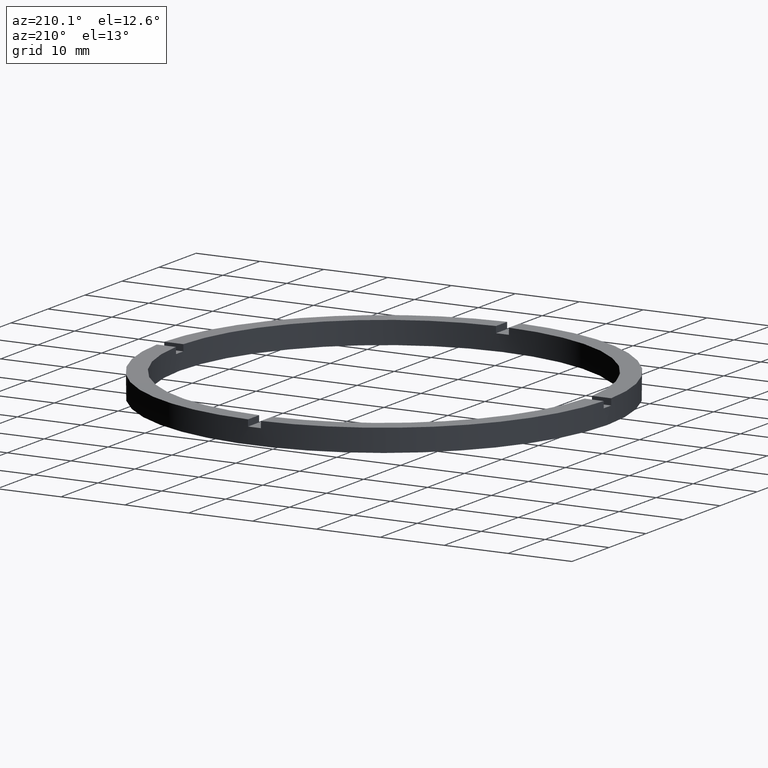
[diagram: clean part render]
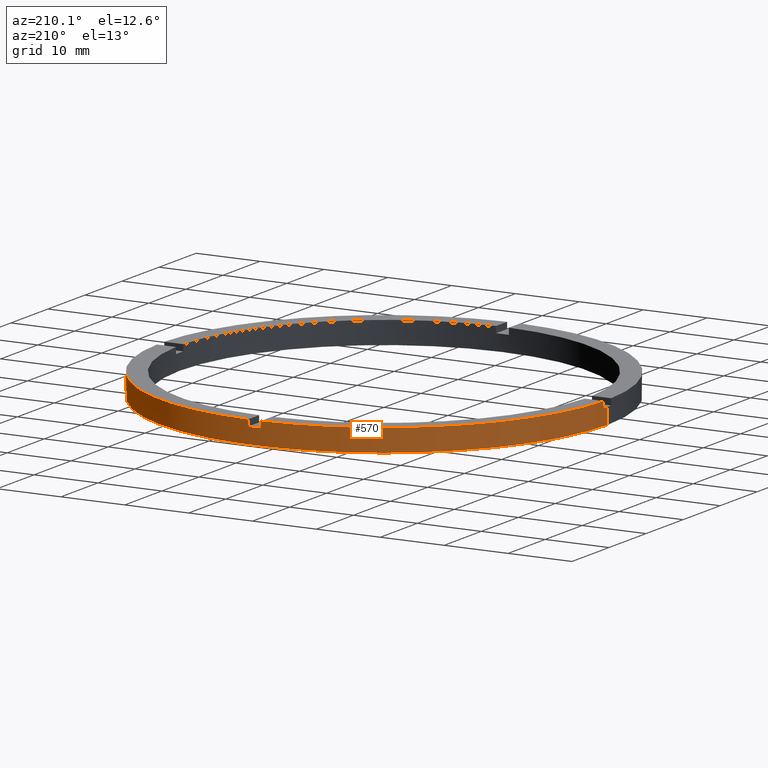
[diagram: same view with one face highlighted and labeled with its STEP entity id]
A machine part, auxiliary view. The second image highlights one B-rep face of the part: STEP entity #570.
In plain terms, the highlighted cylindrical surface (partial cylindrical patch) has radius 35 mm, axis along (-0, -0, -1).
Its self-contained STEP definition (entity closure, byte-faithful):
#2 = CARTESIAN_POINT ( 'NONE',  ( -1.000000000000024869, 34.98571136907180801, 3.500000000000000000 ) ) ;
#8 = CARTESIAN_POINT ( 'NONE',  ( 34.98571136907181511, 0.9999999999998421263, 3.500000000000000000 ) ) ;
#17 = CARTESIAN_POINT ( 'NONE',  ( 0.000000000000000000, 0.000000000000000000, 2.500000000000000000 ) ) ;
#36 = CARTESIAN_POINT ( 'NONE',  ( 0.000000000000000000, 0.000000000000000000, 3.500000000000000000 ) ) ;
#42 = CARTESIAN_POINT ( 'NONE',  ( -35.00000000000000711, 0.000000000000000000, 3.500000000000000000 ) ) ;
#45 = AXIS2_PLACEMENT_3D ( 'NONE', #17, #240, #467 ) ;
#54 = CARTESIAN_POINT ( 'NONE',  ( 0.000000000000000000, 0.000000000000000000, 3.500000000000000000 ) ) ;
#56 = CARTESIAN_POINT ( 'NONE',  ( -1.000000000000024869, 34.98571136907180801, 3.500000000000000000 ) ) ;
#59 = LINE ( 'NONE', #306, #591 ) ;
#61 = EDGE_CURVE ( 'NONE', #638, #110, #104, .T. ) ;
#66 = ORIENTED_EDGE ( 'NONE', *, *, #86, .F. ) ;
#73 = CIRCLE ( 'NONE', #150, 35.00000000000000711 ) ;
#80 = AXIS2_PLACEMENT_3D ( 'NONE', #738, #392, #308 ) ;
#82 = DIRECTION ( 'NONE',  ( -0.000000000000000000, -0.000000000000000000, -1.000000000000000000 ) ) ;
#86 = EDGE_CURVE ( 'NONE', #92, #411, #143, .T. ) ;
#91 = EDGE_LOOP ( 'NONE', ( #363, #625, #152, #66, #342, #416, #420, #330, #677, #157, #108, #370 ) ) ;
#92 = VERTEX_POINT ( 'NONE', #213 ) ;
#104 = LINE ( 'NONE', #56, #109 ) ;
#108 = ORIENTED_EDGE ( 'NONE', *, *, #265, .F. ) ;
#109 = VECTOR ( 'NONE', #575, 1000.000000000000000 ) ;
#110 = VERTEX_POINT ( 'NONE', #759 ) ;
#118 = EDGE_CURVE ( 'NONE', #126, #411, #664, .T. ) ;
#126 = VERTEX_POINT ( 'NONE', #317 ) ;
#127 = DIRECTION ( 'NONE',  ( -0.000000000000000000, -0.000000000000000000, -1.000000000000000000 ) ) ;
#134 = LINE ( 'NONE', #529, #404 ) ;
#141 = CIRCLE ( 'NONE', #80, 35.00000000000000711 ) ;
#143 = LINE ( 'NONE', #42, #654 ) ;
#150 = AXIS2_PLACEMENT_3D ( 'NONE', #618, #714, #772 ) ;
#152 = ORIENTED_EDGE ( 'NONE', *, *, #118, .T. ) ;
#157 = ORIENTED_EDGE ( 'NONE', *, *, #488, .T. ) ;
#161 = EDGE_CURVE ( 'NONE', #643, #427, #134, .T. ) ;
#182 = CARTESIAN_POINT ( 'NONE',  ( 0.000000000000000000, 0.000000000000000000, 0.000000000000000000 ) ) ;
#189 = CARTESIAN_POINT ( 'NONE',  ( -35.00000000000000711, 0.000000000000000000, 0.000000000000000000 ) ) ;
#190 = VECTOR ( 'NONE', #750, 1000.000000000000000 ) ;
#198 = VECTOR ( 'NONE', #549, 1000.000000000000000 ) ;
#207 = CIRCLE ( 'NONE', #558, 35.00000000000000711 ) ;
#213 = CARTESIAN_POINT ( 'NONE',  ( -35.00000000000000711, 0.000000000000000000, 2.500000000000000000 ) ) ;
#226 = EDGE_CURVE ( 'NONE', #391, #427, #141, .T. ) ;
#229 = DIRECTION ( 'NONE',  ( 1.000000000000000000, 0.000000000000000000, 0.000000000000000000 ) ) ;
#232 = CIRCLE ( 'NONE', #760, 35.00000000000000711 ) ;
#235 = AXIS2_PLACEMENT_3D ( 'NONE', #182, #273, #497 ) ;
#240 = DIRECTION ( 'NONE',  ( 0.000000000000000000, -0.000000000000000000, 1.000000000000000000 ) ) ;
#255 = CARTESIAN_POINT ( 'NONE',  ( 35.00000000000000711, 4.286263797015737285E-15, 3.500000000000000000 ) ) ;
#257 = EDGE_CURVE ( 'NONE', #326, #430, #59, .T. ) ;
#262 = DIRECTION ( 'NONE',  ( 0.000000000000000000, 0.000000000000000000, 1.000000000000000000 ) ) ;
#264 = DIRECTION ( 'NONE',  ( -0.000000000000000000, -0.000000000000000000, -1.000000000000000000 ) ) ;
#265 = EDGE_CURVE ( 'NONE', #643, #594, #73, .T. ) ;
#273 = DIRECTION ( 'NONE',  ( 0.000000000000000000, 0.000000000000000000, 1.000000000000000000 ) ) ;
#306 = CARTESIAN_POINT ( 'NONE',  ( -34.98571136907180801, 0.9999999999999733546, 3.500000000000000000 ) ) ;
#307 = DIRECTION ( 'NONE',  ( -1.000000000000000000, 0.000000000000000000, 0.000000000000000000 ) ) ;
#308 = DIRECTION ( 'NONE',  ( 1.000000000000000000, 0.000000000000000000, 0.000000000000000000 ) ) ;
#317 = CARTESIAN_POINT ( 'NONE',  ( 35.00000000000000711, 4.286263797015737285E-15, 0.000000000000000000 ) ) ;
#326 = VERTEX_POINT ( 'NONE', #438 ) ;
#330 = ORIENTED_EDGE ( 'NONE', *, *, #61, .T. ) ;
#342 = ORIENTED_EDGE ( 'NONE', *, *, #561, .F. ) ;
#345 = CARTESIAN_POINT ( 'NONE',  ( 0.9999999999999751310, 34.98571136907180801, 2.500000000000000000 ) ) ;
#363 = ORIENTED_EDGE ( 'NONE', *, *, #226, .F. ) ;
#370 = ORIENTED_EDGE ( 'NONE', *, *, #161, .T. ) ;
#391 = VERTEX_POINT ( 'NONE', #541 ) ;
#392 = DIRECTION ( 'NONE',  ( 0.000000000000000000, 0.000000000000000000, 1.000000000000000000 ) ) ;
#404 = VECTOR ( 'NONE', #82, 1000.000000000000000 ) ;
#408 = VERTEX_POINT ( 'NONE', #345 ) ;
#411 = VERTEX_POINT ( 'NONE', #189 ) ;
#416 = ORIENTED_EDGE ( 'NONE', *, *, #257, .T. ) ;
#420 = ORIENTED_EDGE ( 'NONE', *, *, #783, .F. ) ;
#427 = VERTEX_POINT ( 'NONE', #584 ) ;
#429 = EDGE_CURVE ( 'NONE', #408, #110, #698, .T. ) ;
#430 = VERTEX_POINT ( 'NONE', #593 ) ;
#438 = CARTESIAN_POINT ( 'NONE',  ( -34.98571136907180801, 0.9999999999999733546, 2.500000000000000000 ) ) ;
#455 = CYLINDRICAL_SURFACE ( 'NONE', #531, 35.00000000000000711 ) ;
#467 = DIRECTION ( 'NONE',  ( 1.000000000000000000, 0.000000000000000000, 0.000000000000000000 ) ) ;
#474 = LINE ( 'NONE', #702, #198 ) ;
#484 = DIRECTION ( 'NONE',  ( 0.000000000000000000, 0.000000000000000000, 1.000000000000000000 ) ) ;
#488 = EDGE_CURVE ( 'NONE', #408, #594, #474, .T. ) ;
#497 = DIRECTION ( 'NONE',  ( 1.000000000000000000, 0.000000000000000000, 0.000000000000000000 ) ) ;
#498 = DIRECTION ( 'NONE',  ( 0.000000000000000000, 0.000000000000000000, 1.000000000000000000 ) ) ;
#529 = CARTESIAN_POINT ( 'NONE',  ( 34.98571136907181511, 0.9999999999998421263, 3.500000000000000000 ) ) ;
#530 = DIRECTION ( 'NONE',  ( 1.000000000000000000, 0.000000000000000000, 0.000000000000000000 ) ) ;
#531 = AXIS2_PLACEMENT_3D ( 'NONE', #54, #264, #307 ) ;
#541 = CARTESIAN_POINT ( 'NONE',  ( 35.00000000000000711, 4.286263797015737285E-15, 2.500000000000000000 ) ) ;
#549 = DIRECTION ( 'NONE',  ( 0.000000000000000000, 0.000000000000000000, 1.000000000000000000 ) ) ;
#551 = CARTESIAN_POINT ( 'NONE',  ( 0.000000000000000000, 0.000000000000000000, 2.500000000000000000 ) ) ;
#558 = AXIS2_PLACEMENT_3D ( 'NONE', #551, #262, #229 ) ;
#561 = EDGE_CURVE ( 'NONE', #326, #92, #207, .T. ) ;
#570 = ADVANCED_FACE ( 'NONE', ( #706 ), #455, .T. ) ;
#575 = DIRECTION ( 'NONE',  ( -0.000000000000000000, -0.000000000000000000, -1.000000000000000000 ) ) ;
#584 = CARTESIAN_POINT ( 'NONE',  ( 34.98571136907181511, 0.9999999999998421263, 2.500000000000000000 ) ) ;
#591 = VECTOR ( 'NONE', #484, 1000.000000000000000 ) ;
#593 = CARTESIAN_POINT ( 'NONE',  ( -34.98571136907180801, 0.9999999999999733546, 3.500000000000000000 ) ) ;
#594 = VERTEX_POINT ( 'NONE', #755 ) ;
#618 = CARTESIAN_POINT ( 'NONE',  ( 0.000000000000000000, 0.000000000000000000, 3.500000000000000000 ) ) ;
#625 = ORIENTED_EDGE ( 'NONE', *, *, #684, .T. ) ;
#638 = VERTEX_POINT ( 'NONE', #2 ) ;
#643 = VERTEX_POINT ( 'NONE', #8 ) ;
#654 = VECTOR ( 'NONE', #127, 1000.000000000000000 ) ;
#664 = CIRCLE ( 'NONE', #235, 35.00000000000000711 ) ;
#677 = ORIENTED_EDGE ( 'NONE', *, *, #429, .F. ) ;
#684 = EDGE_CURVE ( 'NONE', #391, #126, #718, .T. ) ;
#698 = CIRCLE ( 'NONE', #45, 35.00000000000000711 ) ;
#702 = CARTESIAN_POINT ( 'NONE',  ( 0.9999999999999751310, 34.98571136907180801, 3.500000000000000000 ) ) ;
#706 = FACE_OUTER_BOUND ( 'NONE', #91, .T. ) ;
#714 = DIRECTION ( 'NONE',  ( 0.000000000000000000, 0.000000000000000000, 1.000000000000000000 ) ) ;
#718 = LINE ( 'NONE', #255, #190 ) ;
#738 = CARTESIAN_POINT ( 'NONE',  ( 0.000000000000000000, 0.000000000000000000, 2.500000000000000000 ) ) ;
#750 = DIRECTION ( 'NONE',  ( -0.000000000000000000, -0.000000000000000000, -1.000000000000000000 ) ) ;
#755 = CARTESIAN_POINT ( 'NONE',  ( 0.9999999999999751310, 34.98571136907180801, 3.500000000000000000 ) ) ;
#759 = CARTESIAN_POINT ( 'NONE',  ( -1.000000000000024869, 34.98571136907180801, 2.500000000000000000 ) ) ;
#760 = AXIS2_PLACEMENT_3D ( 'NONE', #36, #498, #530 ) ;
#772 = DIRECTION ( 'NONE',  ( 1.000000000000000000, 0.000000000000000000, 0.000000000000000000 ) ) ;
#783 = EDGE_CURVE ( 'NONE', #638, #430, #232, .T. ) ;